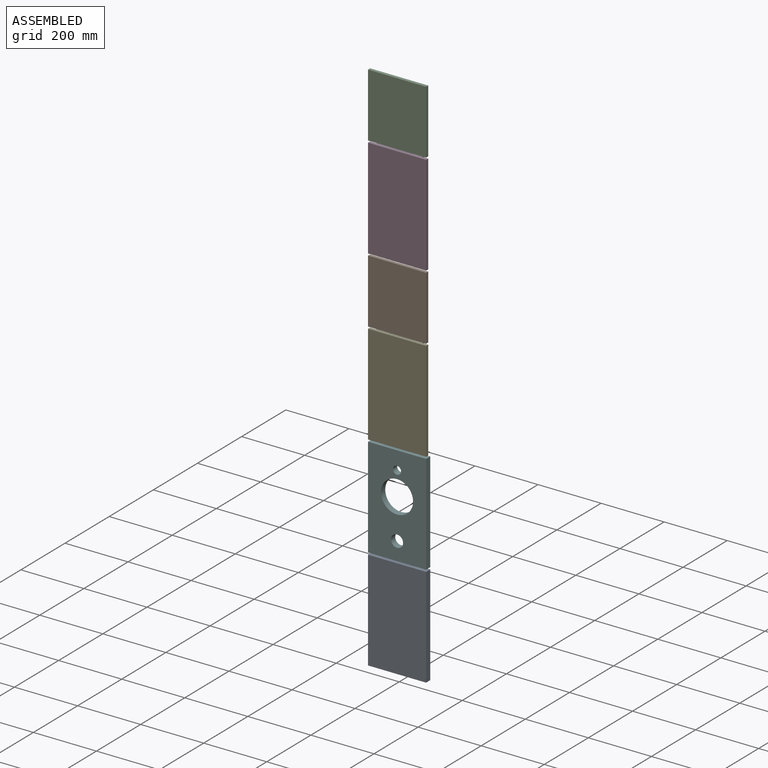
[diagram: assembled view]
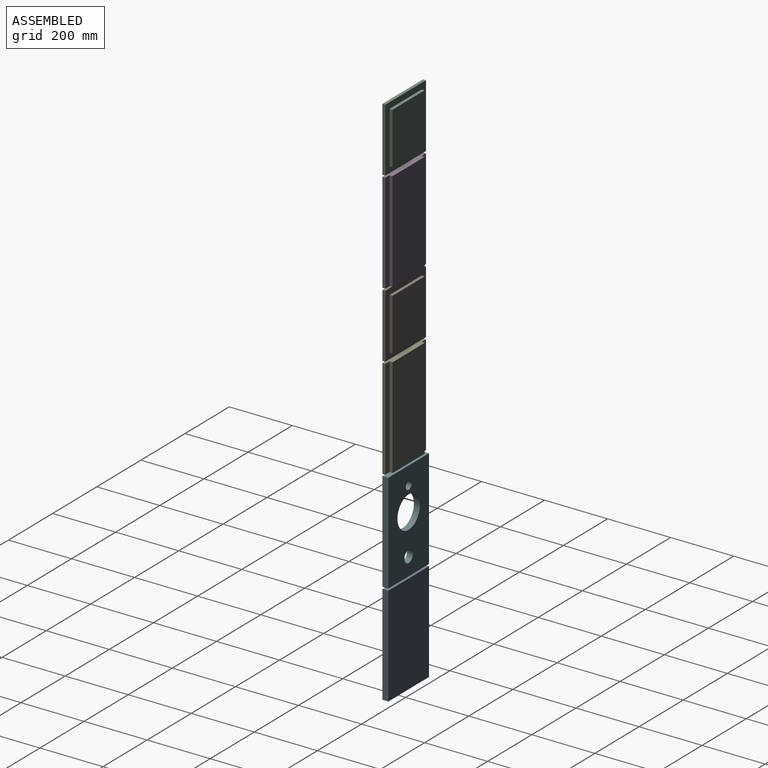
[diagram: assembled view, second angle]
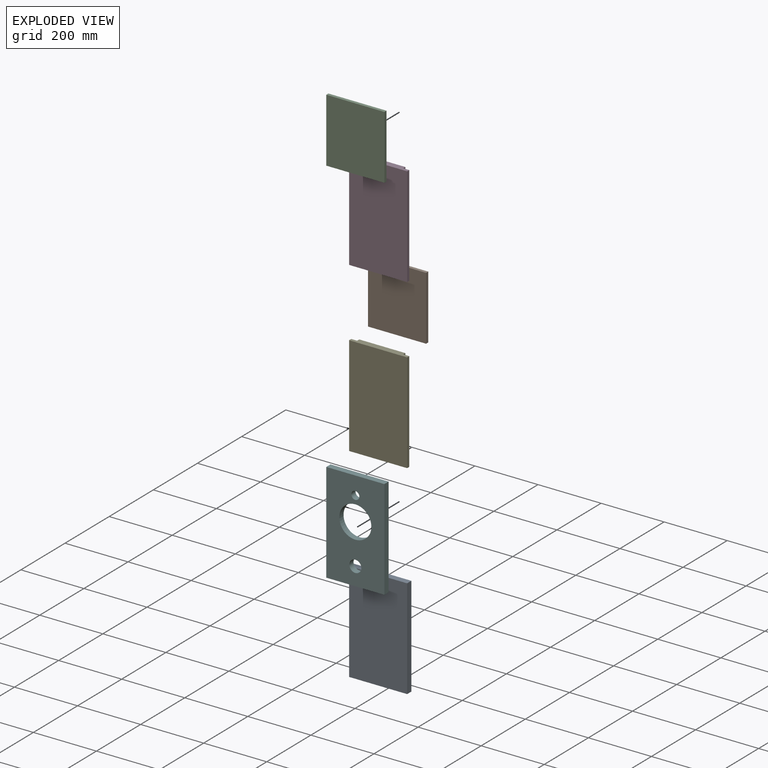
[diagram: exploded view]
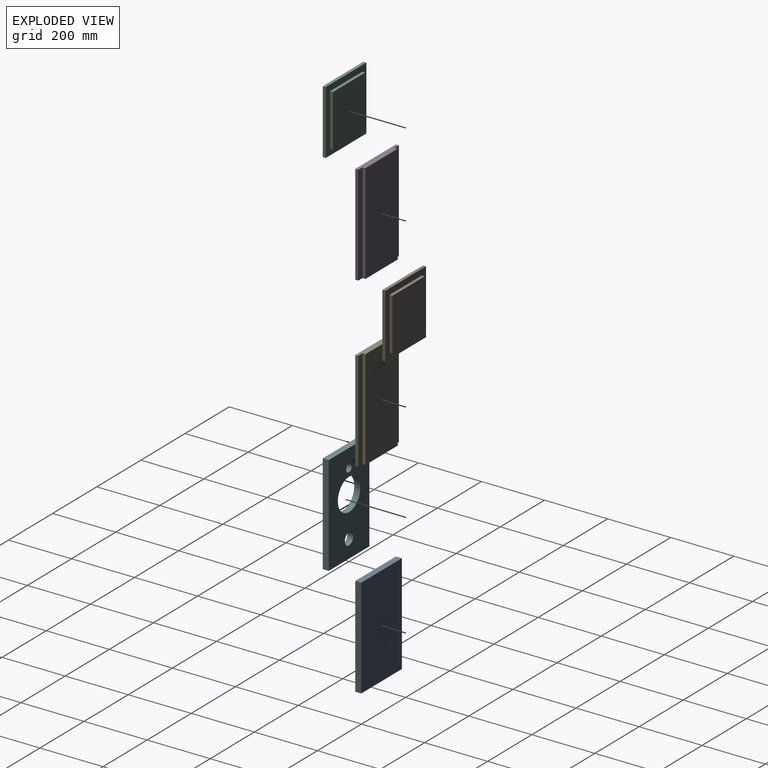
[diagram: exploded view, second angle]
ASSEMBLY  parts=6 mates=5
PART A: 6 faces, bbox 184.2x19.1x317.5 mm
  f0: plane 184.15x19.05mm, normal (0,0,-1), area 3508.1mm2, adj f1,f3,f4,f5
  f1: plane 317.5x19.05mm, normal (1,0,0), area 6048.4mm2, adj f0,f2,f4,f5
  f2: plane 184.15x19.05mm, normal (0,0,1), area 3508.1mm2, adj f1,f3,f4,f5
  f3: plane 317.5x19.05mm, normal (-1,0,0), area 6048.4mm2, adj f0,f2,f4,f5
  f4: plane 317.5x184.15mm, normal (0,-1,0), area 58467.6mm2, adj f0,f1,f2,f3
  f5: plane 317.5x184.15mm, normal (0,1,0), area 58467.6mm2, adj f0,f1,f2,f3
PART B: 11 faces, bbox 203.2x184.2x19.1 mm
  f0: plane 165.1x146.05mm, normal (0,0,-1), area 24112.9mm2, adj f1,f4,f9,f10
  f1: plane 146.05x9.53mm, normal (1,0,0), area 1391.1mm2, adj f0,f8,f9,f10
  f2: plane 203.2x9.53mm, normal (0,-1,0), area 1935.5mm2, adj f5,f6,f7,f8
  f3: plane 203.2x9.53mm, normal (0,1,0), area 1935.5mm2, adj f5,f6,f7,f8
  f4: plane 146.05x9.53mm, normal (-1,0,0), area 1391.1mm2, adj f0,f8,f9,f10
  f5: plane 184.15x9.53mm, normal (1,0,0), area 1754mm2, adj f2,f3,f7,f8
  f6: plane 184.15x9.53mm, normal (-1,0,0), area 1754mm2, adj f2,f3,f7,f8
  f7: plane 203.2x184.15mm, normal (0,0,1), area 37419.3mm2, adj f2,f3,f5,f6
  f8: plane 203.2x184.15mm, normal (0,0,-1), area 13306.4mm2, adj f1,f2,f3,f4,f5,f6,f9,f10
  f9: plane 165.1x9.53mm, normal (0,1,0), area 1572.6mm2, adj f0,f1,f4,f8
  f10: plane 165.1x9.53mm, normal (0,-1,0), area 1572.6mm2, adj f0,f1,f4,f8
PART C: same geometry as B
PART D: 10 faces, bbox 19.1x184.2x317.5 mm
  f0: plane 317.5x146.05mm, normal (-1,0,0), area 46370.9mm2, adj f1,f3,f6,f8
  f1: plane 184.15x19.05mm, normal (0,0,1), area 3145.2mm2, adj f0,f2,f4,f5,f6,f7,f8,f9
  f2: plane 317.5x9.53mm, normal (0,-1,0), area 3024.2mm2, adj f1,f3,f5,f7
  f3: plane 184.15x19.05mm, normal (0,0,-1), area 3145.2mm2, adj f0,f2,f4,f5,f6,f7,f8,f9
  f4: plane 317.5x9.53mm, normal (0,1,0), area 3024.2mm2, adj f1,f3,f5,f9
  f5: plane 317.5x184.15mm, normal (1,0,0), area 58467.6mm2, adj f1,f2,f3,f4
  f6: plane 317.5x9.53mm, normal (0,-1,0), area 3024.2mm2, adj f0,f1,f3,f7
  f7: plane 317.5x19.05mm, normal (-1,0,0), area 6048.4mm2, adj f1,f2,f3,f6
  f8: plane 317.5x9.53mm, normal (0,1,0), area 3024.2mm2, adj f0,f1,f3,f9
  f9: plane 317.5x19.05mm, normal (-1,0,0), area 6048.4mm2, adj f1,f3,f4,f8
PART E: same geometry as D
PART F: 9 faces, bbox 184.2x19.1x317.5 mm
  f0: plane 184.15x19.05mm, normal (0,0,-1), area 3508.1mm2, adj f1,f6,f7,f8
  f1: plane 317.5x19.05mm, normal (1,0,0), area 6048.4mm2, adj f0,f2,f7,f8
  f2: plane 184.15x19.05mm, normal (0,0,1), area 3508.1mm2, adj f1,f6,f7,f8
  f3: cylinder r=50.8mm len=101.6mm, axis (0,1,0), area 6080.5mm2, adj f7,f8
  f4: cylinder r=12.7mm len=25.4mm, axis (0,1,0), area 1520.1mm2, adj f7,f8
  f5: cylinder r=19.05mm len=38.1mm, axis (0,1,0), area 2280.2mm2, adj f7,f8
  f6: plane 317.5x19.05mm, normal (-1,0,0), area 6048.4mm2, adj f0,f2,f7,f8
  f7: plane 317.5x184.15mm, normal (0,-1,0), area 48713.5mm2, adj f0,f1,f2,f3,f4,f5,f6
  f8: plane 317.5x184.15mm, normal (0,1,0), area 48713.5mm2, adj f0,f1,f2,f3,f4,f5,f6
PLACE A t=(0,0,-323.85)mm
PLACE B rot(axis=(0.58,-0.58,0.58),120deg) t=(0,0,590.55)mm
PLACE C rot(axis=(0.58,-0.58,0.58),120deg) t=(0,0,1123.95)mm
PLACE D rot(axis=(0,0,-1),90deg) t=(0,0,857.25)mm
PLACE E rot(axis=(0,0,-1),90deg) t=(0,0,323.85)mm
PLACE F at identity fixed
MATE fastened F.f7 <-> E.f5  axis (0,-1,0) through (0,-9.52,158.75)mm
MATE fastened F.f7 <-> A.f4  axis (0,-1,0) through (0,-9.52,-158.75)mm
MATE fastened E.f5 <-> B.f7  axis (0,-1,0) through (0,-9.53,482.6)mm
MATE fastened B.f7 <-> D.f5  axis (0,-1,0) through (0,-9.53,692.15)mm
MATE fastened C.f7 <-> D.f5  axis (0,-1,0) through (0,-9.53,1022.35)mm
